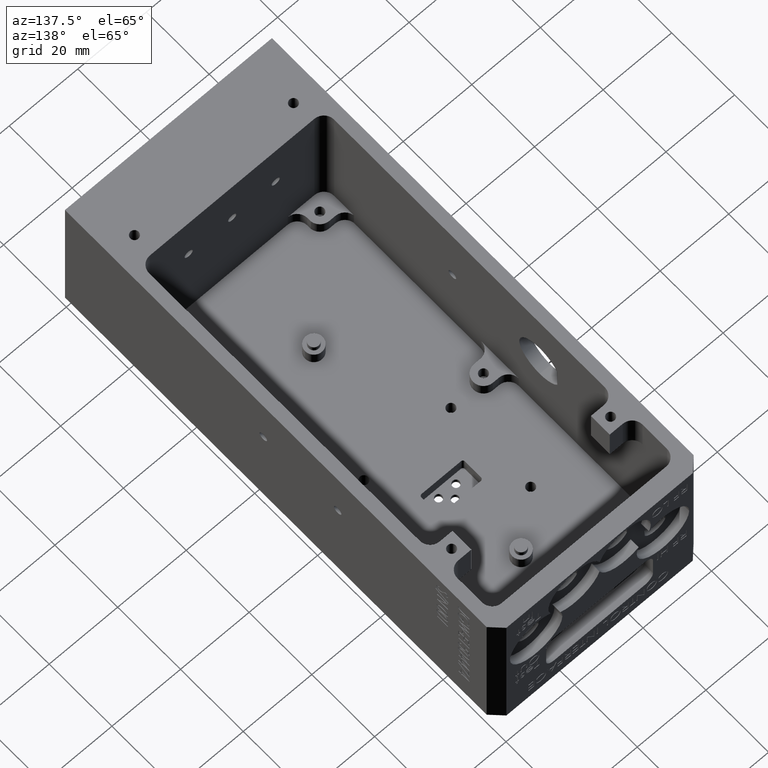
[diagram: clean part render]
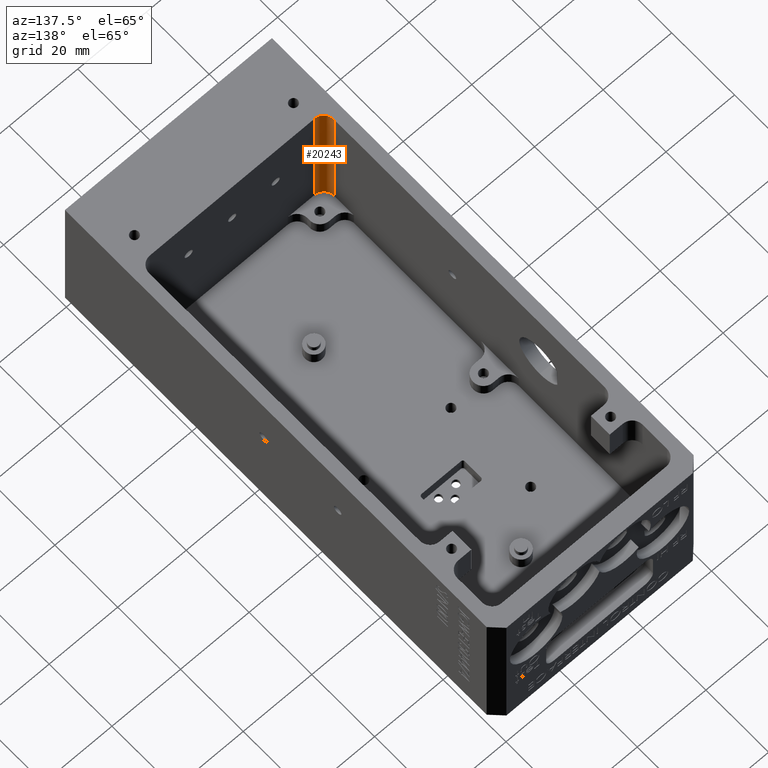
[diagram: same view with one face highlighted and labeled with its STEP entity id]
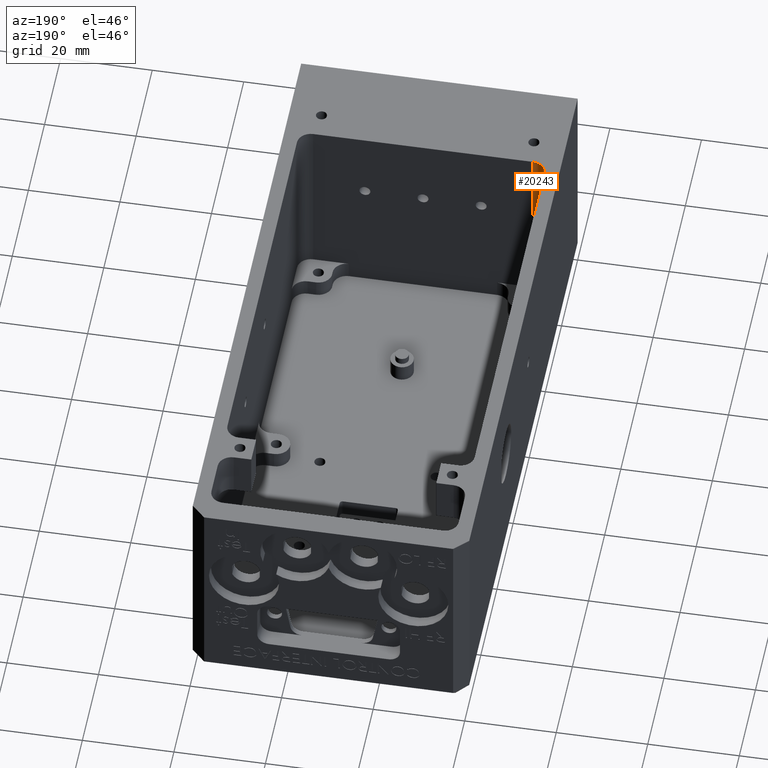
[diagram: same view with one face highlighted and labeled with its STEP entity id]
A machine part, auxiliary view. The second image highlights one B-rep face of the part: STEP entity #20243.
A second angle (auxiliary view) of the same face is appended — the face is thin or edge-on in the first view.
In plain terms, the highlighted cylindrical surface (edge-blend (fillet) strip) has radius 3 mm, axis along (-0, -0, 1).
Its self-contained STEP definition (entity closure, byte-faithful):
#46 = CIRCLE ( 'NONE', #16422, 2.999999999999988000 ) ;
#574 = DIRECTION ( 'NONE',  ( -0.0000000000000000000, -0.0000000000000000000, -1.000000000000000000 ) ) ;
#1857 = FACE_OUTER_BOUND ( 'NONE', #26594, .T. ) ;
#2339 = DIRECTION ( 'NONE',  ( 1.000000000000000000, 0.0000000000000000000, 0.0000000000000000000 ) ) ;
#3512 = LINE ( 'NONE', #33243, #22800 ) ;
#4396 = ORIENTED_EDGE ( 'NONE', *, *, #12262, .F. ) ;
#5091 = AXIS2_PLACEMENT_3D ( 'NONE', #20020, #574, #23267 ) ;
#5302 = DIRECTION ( 'NONE',  ( -0.0000000000000000000, -0.0000000000000000000, -1.000000000000000000 ) ) ;
#5626 = CARTESIAN_POINT ( 'NONE',  ( 6.200000000000001100, 23.29999999999995800, -38.79999999999999700 ) ) ;
#6527 = LINE ( 'NONE', #15106, #14176 ) ;
#7727 = ORIENTED_EDGE ( 'NONE', *, *, #27075, .F. ) ;
#11707 = EDGE_CURVE ( 'NONE', #17704, #12152, #3512, .T. ) ;
#12152 = VERTEX_POINT ( 'NONE', #14834 ) ;
#12262 = EDGE_CURVE ( 'NONE', #38606, #35730, #6527, .T. ) ;
#13886 = DIRECTION ( 'NONE',  ( -0.0000000000000000000, -0.0000000000000000000, 1.000000000000000000 ) ) ;
#14176 = VECTOR ( 'NONE', #18370, 1000.000000000000000 ) ;
#14688 = AXIS2_PLACEMENT_3D ( 'NONE', #5626, #25045, #2339 ) ;
#14834 = CARTESIAN_POINT ( 'NONE',  ( 3.200000000000012600, 23.29999999999996900, 0.0000000000000000000 ) ) ;
#15106 = CARTESIAN_POINT ( 'NONE',  ( 6.200000000000001100, 20.29999999999997200, -38.79999999999999700 ) ) ;
#16422 = AXIS2_PLACEMENT_3D ( 'NONE', #24713, #5302, #27935 ) ;
#16705 = ORIENTED_EDGE ( 'NONE', *, *, #25689, .T. ) ;
#17704 = VERTEX_POINT ( 'NONE', #40195 ) ;
#18133 = CYLINDRICAL_SURFACE ( 'NONE', #14688, 2.999999999999988900 ) ;
#18370 = DIRECTION ( 'NONE',  ( -0.0000000000000000000, -0.0000000000000000000, 1.000000000000000000 ) ) ;
#20020 = CARTESIAN_POINT ( 'NONE',  ( 6.200000000000001100, 23.29999999999995800, 0.0000000000000000000 ) ) ;
#20243 = ADVANCED_FACE ( 'NONE', ( #1857 ), #18133, .F. ) ;
#22800 = VECTOR ( 'NONE', #13886, 1000.000000000000000 ) ;
#23267 = DIRECTION ( 'NONE',  ( -1.000000000000000000, 0.0000000000000000000, 0.0000000000000000000 ) ) ;
#24713 = CARTESIAN_POINT ( 'NONE',  ( 6.200000000000001100, 23.29999999999995800, -38.79999999999999700 ) ) ;
#25045 = DIRECTION ( 'NONE',  ( -0.0000000000000000000, -0.0000000000000000000, 1.000000000000000000 ) ) ;
#25689 = EDGE_CURVE ( 'NONE', #38606, #17704, #46, .T. ) ;
#26304 = CARTESIAN_POINT ( 'NONE',  ( 6.200000000000001100, 20.29999999999997200, 0.0000000000000000000 ) ) ;
#26594 = EDGE_LOOP ( 'NONE', ( #7727, #4396, #16705, #26613 ) ) ;
#26613 = ORIENTED_EDGE ( 'NONE', *, *, #11707, .T. ) ;
#27075 = EDGE_CURVE ( 'NONE', #35730, #12152, #42045, .T. ) ;
#27935 = DIRECTION ( 'NONE',  ( -1.000000000000000000, 0.0000000000000000000, 0.0000000000000000000 ) ) ;
#29068 = CARTESIAN_POINT ( 'NONE',  ( 6.200000000000001100, 20.29999999999997200, -38.79999999999999700 ) ) ;
#33243 = CARTESIAN_POINT ( 'NONE',  ( 3.200000000000012600, 23.29999999999996900, -38.79999999999999700 ) ) ;
#35730 = VERTEX_POINT ( 'NONE', #26304 ) ;
#38606 = VERTEX_POINT ( 'NONE', #29068 ) ;
#40195 = CARTESIAN_POINT ( 'NONE',  ( 3.200000000000012600, 23.29999999999996900, -38.79999999999999700 ) ) ;
#42045 = CIRCLE ( 'NONE', #5091, 2.999999999999988000 ) ;